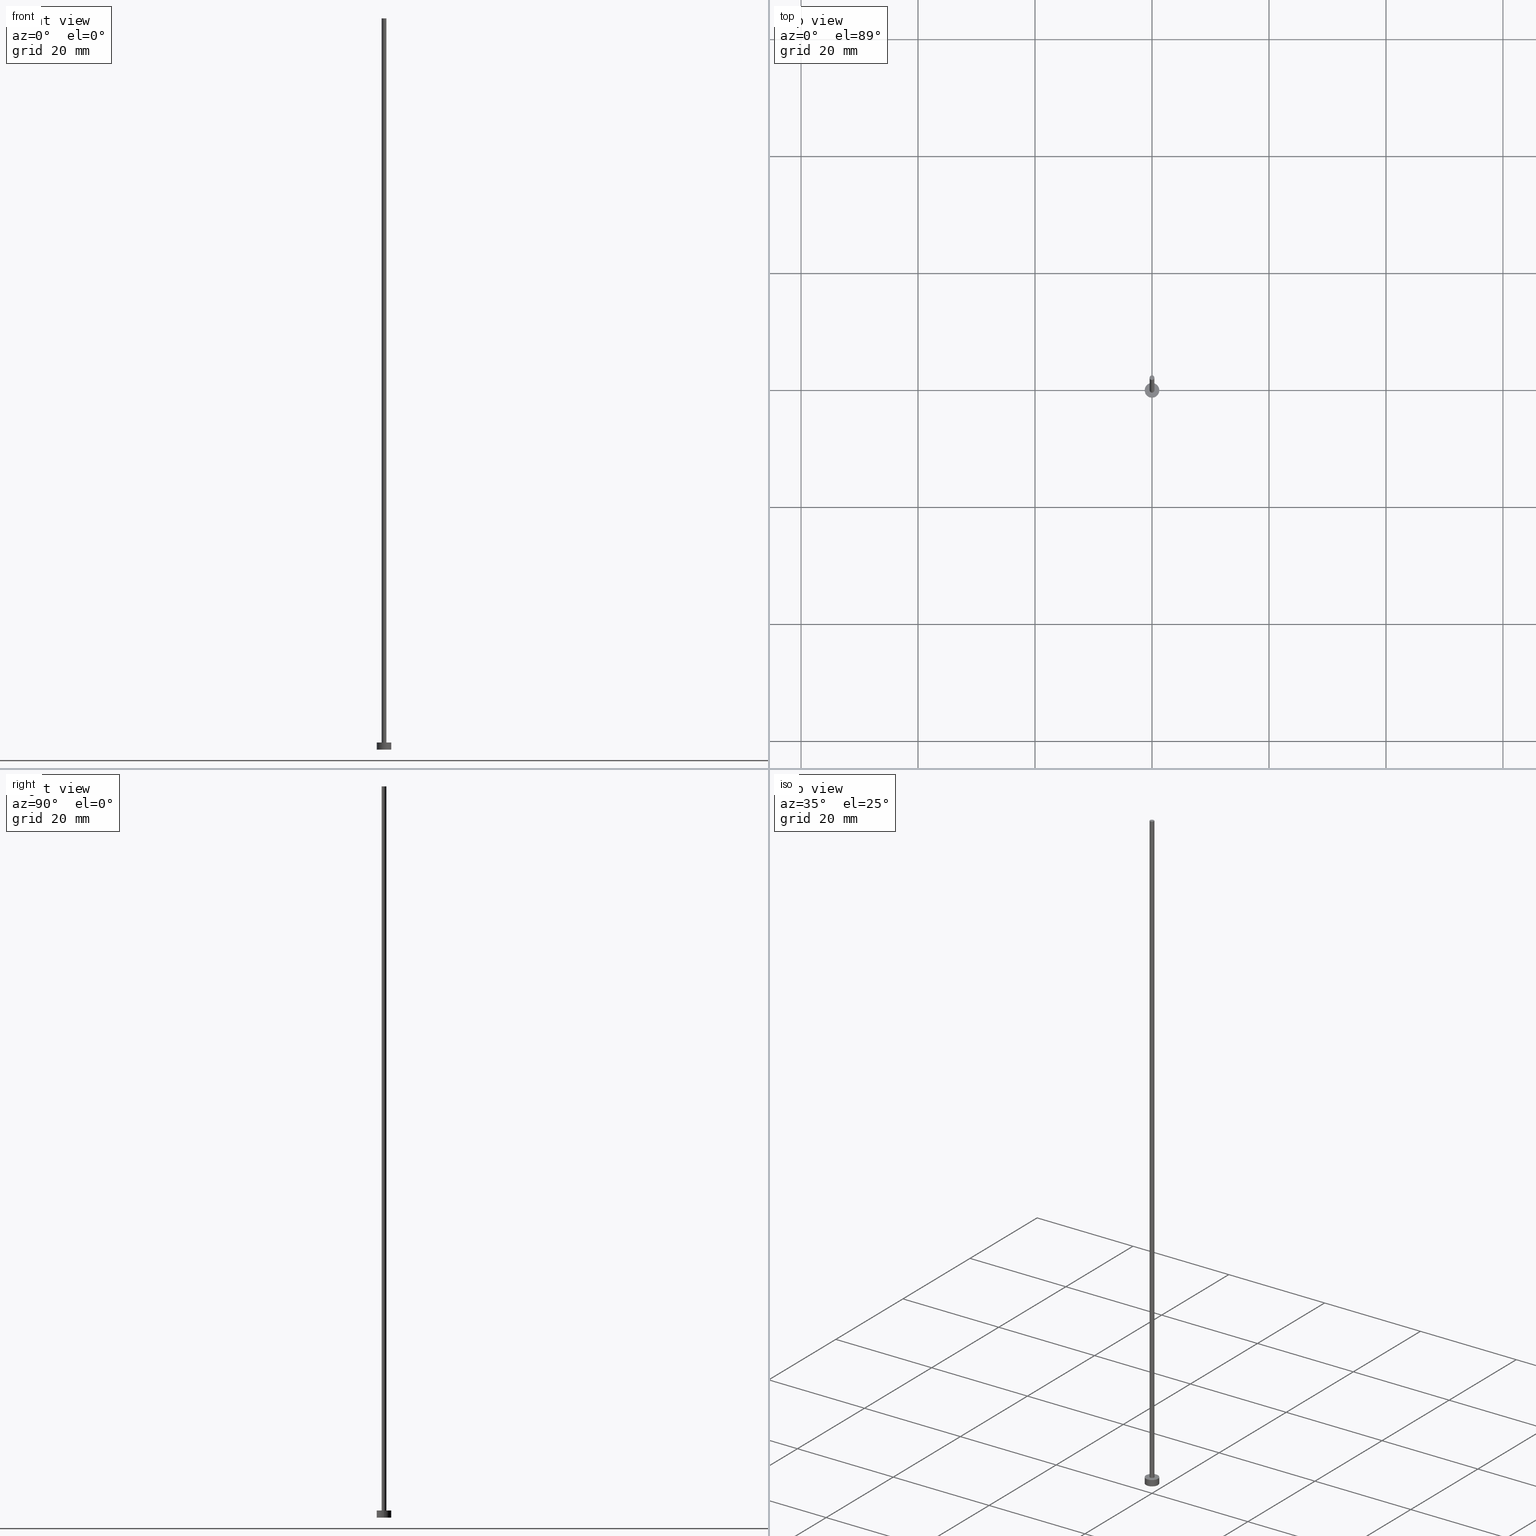
[diagram: canonical four-view strip — front | top / right | iso, engineering-drawing reading convention]
A machine part, canonical four-view strip (front | top / right | iso — engineering-drawing reading convention). The complete STEP part file that produces these views, byte-faithful:
ISO-10303-21;
HEADER;
FILE_DESCRIPTION (( 'STEP AP203' ),
    '1' );
FILE_NAME ('d36b.STEP',
    '2026-02-06T12:44:44',
    ( '' ),
    ( '' ),
    'SwSTEP 2.0',
    'SolidWorks 2019',
    '' );
FILE_SCHEMA (( 'CONFIG_CONTROL_DESIGN' ));
ENDSEC;

DATA;
#1 = ADVANCED_FACE ( 'NONE', ( #242 ), #224, .T. ) ;
#2 = CC_DESIGN_DATE_AND_TIME_ASSIGNMENT ( #30, #211, ( #17 ) ) ;
#3 = COORDINATED_UNIVERSAL_TIME_OFFSET ( 1, 0, .AHEAD. ) ;
#4 = AXIS2_PLACEMENT_3D ( 'NONE', #11, #145, #108 ) ;
#5 = DATE_AND_TIME ( #101, #133 ) ;
#6 = PERSON_AND_ORGANIZATION ( #22, #199 ) ;
#7 = EDGE_CURVE ( 'NONE', #43, #165, #127, .T. ) ;
#8 = CARTESIAN_POINT ( 'NONE',  ( 0.000000000000000000, 0.000000000000000000, 1.199999999999999956 ) ) ;
#9 = ORIENTED_EDGE ( 'NONE', *, *, #167, .T. ) ;
#10 = DATE_TIME_ROLE ( 'creation_date' ) ;
#11 = CARTESIAN_POINT ( 'NONE',  ( 0.000000000000000000, 0.000000000000000000, 1.199999999999999956 ) ) ;
#12 = VECTOR ( 'NONE', #38, 1000.000000000000000 ) ;
#13 = LINE ( 'NONE', #251, #117 ) ;
#14 = APPLICATION_CONTEXT ( 'configuration controlled 3d designs of mechanical parts and assemblies' ) ;
#15 = FACE_OUTER_BOUND ( 'NONE', #65, .T. ) ;
#16 = DIRECTION ( 'NONE',  ( -1.000000000000000000, 0.000000000000000000, 0.000000000000000000 ) ) ;
#17 = SECURITY_CLASSIFICATION ( '', '', #188 ) ;
#18 =( LENGTH_UNIT ( ) NAMED_UNIT ( * ) SI_UNIT ( .MILLI., .METRE. ) );
#19 = FACE_OUTER_BOUND ( 'NONE', #69, .T. ) ;
#20 = EDGE_CURVE ( 'NONE', #71, #102, #162, .T. ) ;
#21 = PRODUCT_DEFINITION ( 'NEZN�M�', '', #42, #175 ) ;
#22 = PERSON ( 'NEUR�EN�', 'NEUR�EN�', 'NEUR�EN�', ('NEUR�EN�'), ('NEUR�EN�'), ('NEUR�EN�') ) ;
#23 = ORIENTED_EDGE ( 'NONE', *, *, #155, .F. ) ;
#24 = CARTESIAN_POINT ( 'NONE',  ( 0.000000000000000000, 0.000000000000000000, 125.0000000000000000 ) ) ;
#25 = AXIS2_PLACEMENT_3D ( 'NONE', #158, #95, #97 ) ;
#26 = ORIENTED_EDGE ( 'NONE', *, *, #241, .F. ) ;
#27 = PLANE ( 'NONE',  #70 ) ;
#28 = APPROVAL_DATE_TIME ( #45, #81 ) ;
#29 = DIRECTION ( 'NONE',  ( 1.000000000000000000, 0.000000000000000000, -0.000000000000000000 ) ) ;
#30 = DATE_AND_TIME ( #153, #161 ) ;
#31 = DIRECTION ( 'NONE',  ( -0.000000000000000000, -0.000000000000000000, -1.000000000000000000 ) ) ;
#32 = DIRECTION ( 'NONE',  ( 1.000000000000000000, 0.000000000000000000, 0.000000000000000000 ) ) ;
#33 = ADVANCED_FACE ( 'NONE', ( #68, #132 ), #244, .T. ) ;
#34 = CARTESIAN_POINT ( 'NONE',  ( 0.000000000000000000, 0.000000000000000000, 1.199999999999999956 ) ) ;
#35 = CC_DESIGN_APPROVAL ( #209, ( #17 ) ) ;
#36 = CIRCLE ( 'NONE', #184, 1.250000000000000000 ) ;
#37 = DIRECTION ( 'NONE',  ( -0.000000000000000000, -0.000000000000000000, -1.000000000000000000 ) ) ;
#38 = DIRECTION ( 'NONE',  ( -0.000000000000000000, -0.000000000000000000, -1.000000000000000000 ) ) ;
#39 = APPROVAL_ROLE ( '' ) ;
#40 = APPLICATION_PROTOCOL_DEFINITION ( 'international standard', 'config_control_design', 1994, #218 ) ;
#41 = ORIENTED_EDGE ( 'NONE', *, *, #53, .F. ) ;
#42 = PRODUCT_DEFINITION_FORMATION_WITH_SPECIFIED_SOURCE ( 'LIBOVOLN�', '', #121, .NOT_KNOWN. ) ;
#43 = VERTEX_POINT ( 'NONE', #128 ) ;
#44 = ORIENTED_EDGE ( 'NONE', *, *, #7, .F. ) ;
#45 = DATE_AND_TIME ( #227, #221 ) ;
#46 = CARTESIAN_POINT ( 'NONE',  ( 0.000000000000000000, 0.000000000000000000, 125.0000000000000000 ) ) ;
#47 = VERTEX_POINT ( 'NONE', #149 ) ;
#48 = DIRECTION ( 'NONE',  ( 0.000000000000000000, 0.000000000000000000, 1.000000000000000000 ) ) ;
#49 = CC_DESIGN_DATE_AND_TIME_ASSIGNMENT ( #225, #10, ( #21 ) ) ;
#50 = DATE_AND_TIME ( #152, #197 ) ;
#51 = CARTESIAN_POINT ( 'NONE',  ( 0.4000000000000000222, 4.898587196589413075E-17, 125.0000000000000000 ) ) ;
#52 = AXIS2_PLACEMENT_3D ( 'NONE', #160, #220, #238 ) ;
#53 = EDGE_CURVE ( 'NONE', #187, #150, #36, .T. ) ;
#54 =( GEOMETRIC_REPRESENTATION_CONTEXT ( 3 ) GLOBAL_UNCERTAINTY_ASSIGNED_CONTEXT ( ( #78 ) ) GLOBAL_UNIT_ASSIGNED_CONTEXT ( ( #18, #116, #100 ) ) REPRESENTATION_CONTEXT ( 'NONE', 'WORKASPACE' ) );
#55 = DIRECTION ( 'NONE',  ( 0.000000000000000000, 0.000000000000000000, 1.000000000000000000 ) ) ;
#56 = DIRECTION ( 'NONE',  ( -1.000000000000000000, 0.000000000000000000, 0.000000000000000000 ) ) ;
#57 = APPROVAL_ROLE ( '' ) ;
#58 = CYLINDRICAL_SURFACE ( 'NONE', #85, 1.250000000000000000 ) ;
#59 = CIRCLE ( 'NONE', #245, 0.4000000000000000222 ) ;
#60 = CARTESIAN_POINT ( 'NONE',  ( 0.000000000000000000, 0.000000000000000000, 0.000000000000000000 ) ) ;
#61 = CC_DESIGN_PERSON_AND_ORGANIZATION_ASSIGNMENT ( #104, #192, ( #42 ) ) ;
#62 = ADVANCED_FACE ( 'NONE', ( #223 ), #27, .T. ) ;
#63 = AXIS2_PLACEMENT_3D ( 'NONE', #24, #89, #243 ) ;
#64 = PRODUCT_DEFINITION_SHAPE ( 'NONE', 'NONE',  #21 ) ;
#65 = EDGE_LOOP ( 'NONE', ( #193, #26 ) ) ;
#66 = CC_DESIGN_APPROVAL ( #81, ( #42 ) ) ;
#67 = ORIENTED_EDGE ( 'NONE', *, *, #141, .F. ) ;
#68 = FACE_BOUND ( 'NONE', #249, .T. ) ;
#69 = EDGE_LOOP ( 'NONE', ( #239, #191, #172, #23 ) ) ;
#70 = AXIS2_PLACEMENT_3D ( 'NONE', #73, #189, #29 ) ;
#71 = VERTEX_POINT ( 'NONE', #228 ) ;
#72 = PERSON_AND_ORGANIZATION ( #22, #199 ) ;
#73 = CARTESIAN_POINT ( 'NONE',  ( 0.000000000000000000, 0.000000000000000000, 125.0000000000000000 ) ) ;
#74 = APPROVAL_STATUS ( 'not_yet_approved' ) ;
#75 = CARTESIAN_POINT ( 'NONE',  ( 1.250000000000000000, 1.530808498934191571E-16, 1.199999999999999956 ) ) ;
#76 = DIRECTION ( 'NONE',  ( 1.000000000000000000, 0.000000000000000000, 0.000000000000000000 ) ) ;
#77 = CARTESIAN_POINT ( 'NONE',  ( 0.000000000000000000, 0.000000000000000000, 1.199999999999999956 ) ) ;
#78 = UNCERTAINTY_MEASURE_WITH_UNIT (LENGTH_MEASURE( 1.000000000000000082E-05 ), #18, 'distance_accuracy_value', 'NONE');
#79 = CARTESIAN_POINT ( 'NONE',  ( 0.000000000000000000, 0.000000000000000000, 1.199999999999999956 ) ) ;
#80 = APPROVAL_PERSON_ORGANIZATION ( #250, #209, #57 ) ;
#81 = APPROVAL ( #202, 'NEUR�EN�' ) ;
#82 = EDGE_CURVE ( 'NONE', #165, #43, #247, .T. ) ;
#83 = ORIENTED_EDGE ( 'NONE', *, *, #20, .T. ) ;
#84 = PERSON_AND_ORGANIZATION_ROLE ( 'classification_officer' ) ;
#85 = AXIS2_PLACEMENT_3D ( 'NONE', #77, #112, #16 ) ;
#86 = COORDINATED_UNIVERSAL_TIME_OFFSET ( 1, 0, .AHEAD. ) ;
#87 = DIRECTION ( 'NONE',  ( -1.000000000000000000, 0.000000000000000000, 0.000000000000000000 ) ) ;
#88 = ORIENTED_EDGE ( 'NONE', *, *, #186, .T. ) ;
#89 = DIRECTION ( 'NONE',  ( 0.000000000000000000, 0.000000000000000000, 1.000000000000000000 ) ) ;
#90 = PERSON_AND_ORGANIZATION ( #22, #199 ) ;
#91 = CC_DESIGN_APPROVAL ( #181, ( #21 ) ) ;
#92 = CYLINDRICAL_SURFACE ( 'NONE', #156, 1.250000000000000000 ) ;
#93 = CC_DESIGN_PERSON_AND_ORGANIZATION_ASSIGNMENT ( #72, #200, ( #42 ) ) ;
#94 = LINE ( 'NONE', #229, #177 ) ;
#95 = DIRECTION ( 'NONE',  ( 0.000000000000000000, 0.000000000000000000, 1.000000000000000000 ) ) ;
#96 = AXIS2_PLACEMENT_3D ( 'NONE', #46, #31, #87 ) ;
#97 = DIRECTION ( 'NONE',  ( 1.000000000000000000, 0.000000000000000000, 0.000000000000000000 ) ) ;
#98 = CIRCLE ( 'NONE', #25, 1.250000000000000000 ) ;
#99 = CC_DESIGN_PERSON_AND_ORGANIZATION_ASSIGNMENT ( #6, #84, ( #17 ) ) ;
#100 =( NAMED_UNIT ( * ) SI_UNIT ( $, .STERADIAN. ) SOLID_ANGLE_UNIT ( ) );
#101 = CALENDAR_DATE ( 2026, 6, 2 ) ;
#102 = VERTEX_POINT ( 'NONE', #114 ) ;
#103 = VERTEX_POINT ( 'NONE', #255 ) ;
#104 = PERSON_AND_ORGANIZATION ( #22, #199 ) ;
#105 = CARTESIAN_POINT ( 'NONE',  ( 0.000000000000000000, 0.000000000000000000, 0.000000000000000000 ) ) ;
#106 = ADVANCED_FACE ( 'NONE', ( #173 ), #92, .T. ) ;
#107 = EDGE_LOOP ( 'NONE', ( #120, #88, #166, #169 ) ) ;
#108 = DIRECTION ( 'NONE',  ( 1.000000000000000000, 0.000000000000000000, -0.000000000000000000 ) ) ;
#109 = SHAPE_DEFINITION_REPRESENTATION ( #64, #232 ) ;
#110 = ADVANCED_FACE ( 'NONE', ( #15 ), #235, .F. ) ;
#111 = FACE_OUTER_BOUND ( 'NONE', #107, .T. ) ;
#112 = DIRECTION ( 'NONE',  ( -0.000000000000000000, -0.000000000000000000, -1.000000000000000000 ) ) ;
#113 = AXIS2_PLACEMENT_3D ( 'NONE', #105, #130, #170 ) ;
#114 = CARTESIAN_POINT ( 'NONE',  ( 1.250000000000000000, 1.530808498934191571E-16, 0.000000000000000000 ) ) ;
#115 = DIRECTION ( 'NONE',  ( -0.000000000000000000, -0.000000000000000000, -1.000000000000000000 ) ) ;
#116 =( NAMED_UNIT ( * ) PLANE_ANGLE_UNIT ( ) SI_UNIT ( $, .RADIAN. ) );
#117 = VECTOR ( 'NONE', #135, 1000.000000000000000 ) ;
#118 = CLOSED_SHELL ( 'NONE', ( #124, #215, #106, #33, #110, #1, #62 ) ) ;
#119 = APPROVAL_DATE_TIME ( #5, #181 ) ;
#120 = ORIENTED_EDGE ( 'NONE', *, *, #167, .F. ) ;
#121 = PRODUCT ( 'd36b', 'd36b', '', ( #236 ) ) ;
#122 = ORIENTED_EDGE ( 'NONE', *, *, #82, .T. ) ;
#123 = ORIENTED_EDGE ( 'NONE', *, *, #53, .T. ) ;
#124 = ADVANCED_FACE ( 'NONE', ( #19 ), #212, .T. ) ;
#125 = ORIENTED_EDGE ( 'NONE', *, *, #207, .F. ) ;
#126 = AXIS2_PLACEMENT_3D ( 'NONE', #79, #136, #140 ) ;
#127 = CIRCLE ( 'NONE', #63, 0.4000000000000000222 ) ;
#128 = CARTESIAN_POINT ( 'NONE',  ( -0.4000000000000000222, 0.000000000000000000, 125.0000000000000000 ) ) ;
#129 = CIRCLE ( 'NONE', #126, 0.4000000000000000222 ) ;
#130 = DIRECTION ( 'NONE',  ( 0.000000000000000000, 0.000000000000000000, 1.000000000000000000 ) ) ;
#131 = PRODUCT_RELATED_PRODUCT_CATEGORY ( 'detail', '', ( #121 ) ) ;
#132 = FACE_OUTER_BOUND ( 'NONE', #203, .T. ) ;
#133 = LOCAL_TIME ( 13, 44, 44.00000000000000000, #198 ) ;
#134 = APPROVAL_DATE_TIME ( #50, #209 ) ;
#135 = DIRECTION ( 'NONE',  ( -0.000000000000000000, -0.000000000000000000, -1.000000000000000000 ) ) ;
#136 = DIRECTION ( 'NONE',  ( 0.000000000000000000, 0.000000000000000000, 1.000000000000000000 ) ) ;
#137 = CARTESIAN_POINT ( 'NONE',  ( -0.4000000000000000222, 0.000000000000000000, 125.0000000000000000 ) ) ;
#138 = EDGE_CURVE ( 'NONE', #165, #103, #94, .T. ) ;
#139 = AXIS2_PLACEMENT_3D ( 'NONE', #151, #48, #208 ) ;
#140 = DIRECTION ( 'NONE',  ( 1.000000000000000000, 0.000000000000000000, 0.000000000000000000 ) ) ;
#141 = EDGE_CURVE ( 'NONE', #47, #103, #129, .T. ) ;
#142 = PERSON_AND_ORGANIZATION ( #22, #199 ) ;
#143 = EDGE_LOOP ( 'NONE', ( #171, #122 ) ) ;
#144 = ORIENTED_EDGE ( 'NONE', *, *, #138, .F. ) ;
#145 = DIRECTION ( 'NONE',  ( 0.000000000000000000, 0.000000000000000000, 1.000000000000000000 ) ) ;
#146 = EDGE_LOOP ( 'NONE', ( #246, #41, #226, #83 ) ) ;
#147 = COORDINATED_UNIVERSAL_TIME_OFFSET ( 1, 0, .AHEAD. ) ;
#148 = ORIENTED_EDGE ( 'NONE', *, *, #155, .T. ) ;
#149 = CARTESIAN_POINT ( 'NONE',  ( -0.4000000000000000222, 0.000000000000000000, 1.199999999999999956 ) ) ;
#150 = VERTEX_POINT ( 'NONE', #213 ) ;
#151 = CARTESIAN_POINT ( 'NONE',  ( 0.000000000000000000, 0.000000000000000000, 125.0000000000000000 ) ) ;
#152 = CALENDAR_DATE ( 2026, 6, 2 ) ;
#153 = CALENDAR_DATE ( 2026, 6, 2 ) ;
#154 = DIRECTION ( 'NONE',  ( -0.000000000000000000, -0.000000000000000000, -1.000000000000000000 ) ) ;
#155 = EDGE_CURVE ( 'NONE', #43, #47, #254, .T. ) ;
#156 = AXIS2_PLACEMENT_3D ( 'NONE', #233, #37, #159 ) ;
#157 = CARTESIAN_POINT ( 'NONE',  ( 0.000000000000000000, 0.000000000000000000, 0.000000000000000000 ) ) ;
#158 = CARTESIAN_POINT ( 'NONE',  ( 0.000000000000000000, 0.000000000000000000, 1.199999999999999956 ) ) ;
#159 = DIRECTION ( 'NONE',  ( -1.000000000000000000, 0.000000000000000000, 0.000000000000000000 ) ) ;
#160 = CARTESIAN_POINT ( 'NONE',  ( 0.000000000000000000, 0.000000000000000000, 0.000000000000000000 ) ) ;
#161 = LOCAL_TIME ( 13, 44, 44.00000000000000000, #86 ) ;
#162 = CIRCLE ( 'NONE', #113, 1.250000000000000000 ) ;
#163 = AXIS2_PLACEMENT_3D ( 'NONE', #60, #55, #253 ) ;
#164 = CC_DESIGN_PERSON_AND_ORGANIZATION_ASSIGNMENT ( #142, #217, ( #121 ) ) ;
#165 = VERTEX_POINT ( 'NONE', #51 ) ;
#166 = ORIENTED_EDGE ( 'NONE', *, *, #241, .T. ) ;
#167 = EDGE_CURVE ( 'NONE', #150, #187, #98, .T. ) ;
#168 = APPROVAL_PERSON_ORGANIZATION ( #90, #81, #248 ) ;
#169 = ORIENTED_EDGE ( 'NONE', *, *, #174, .F. ) ;
#170 = DIRECTION ( 'NONE',  ( 1.000000000000000000, 0.000000000000000000, 0.000000000000000000 ) ) ;
#171 = ORIENTED_EDGE ( 'NONE', *, *, #7, .T. ) ;
#172 = ORIENTED_EDGE ( 'NONE', *, *, #207, .T. ) ;
#173 = FACE_OUTER_BOUND ( 'NONE', #146, .T. ) ;
#174 = EDGE_CURVE ( 'NONE', #187, #71, #13, .T. ) ;
#175 = DESIGN_CONTEXT ( 'detailed design', #14, 'design' ) ;
#176 = DIRECTION ( 'NONE',  ( 0.000000000000000000, 0.000000000000000000, 1.000000000000000000 ) ) ;
#177 = VECTOR ( 'NONE', #179, 1000.000000000000000 ) ;
#178 = LINE ( 'NONE', #75, #196 ) ;
#179 = DIRECTION ( 'NONE',  ( -0.000000000000000000, -0.000000000000000000, -1.000000000000000000 ) ) ;
#180 = LOCAL_TIME ( 13, 44, 44.00000000000000000, #3 ) ;
#181 = APPROVAL ( #214, 'NEUR�EN�' ) ;
#182 = PERSON_AND_ORGANIZATION_ROLE ( 'creator' ) ;
#183 = APPLICATION_PROTOCOL_DEFINITION ( 'international standard', 'config_control_design', 1994, #14 ) ;
#184 = AXIS2_PLACEMENT_3D ( 'NONE', #8, #206, #205 ) ;
#185 = PERSON_AND_ORGANIZATION ( #22, #199 ) ;
#186 = EDGE_CURVE ( 'NONE', #150, #102, #178, .T. ) ;
#187 = VERTEX_POINT ( 'NONE', #210 ) ;
#188 = SECURITY_CLASSIFICATION_LEVEL ( 'unclassified' ) ;
#189 = DIRECTION ( 'NONE',  ( 0.000000000000000000, 0.000000000000000000, 1.000000000000000000 ) ) ;
#190 = AXIS2_PLACEMENT_3D ( 'NONE', #157, #176, #76 ) ;
#191 = ORIENTED_EDGE ( 'NONE', *, *, #138, .T. ) ;
#192 = PERSON_AND_ORGANIZATION_ROLE ( 'creator' ) ;
#193 = ORIENTED_EDGE ( 'NONE', *, *, #20, .F. ) ;
#194 = CC_DESIGN_PERSON_AND_ORGANIZATION_ASSIGNMENT ( #185, #182, ( #21 ) ) ;
#195 = CC_DESIGN_SECURITY_CLASSIFICATION ( #17, ( #42 ) ) ;
#196 = VECTOR ( 'NONE', #154, 1000.000000000000000 ) ;
#197 = LOCAL_TIME ( 13, 44, 44.00000000000000000, #252 ) ;
#198 = COORDINATED_UNIVERSAL_TIME_OFFSET ( 1, 0, .AHEAD. ) ;
#199 = ORGANIZATION ( 'NEUR�EN�', 'NEUR�EN�', '' ) ;
#200 = PERSON_AND_ORGANIZATION_ROLE ( 'design_supplier' ) ;
#201 = ORIENTED_EDGE ( 'NONE', *, *, #141, .T. ) ;
#202 = APPROVAL_STATUS ( 'not_yet_approved' ) ;
#203 = EDGE_LOOP ( 'NONE', ( #123, #9 ) ) ;
#204 = EDGE_LOOP ( 'NONE', ( #144, #44, #148, #201 ) ) ;
#205 = DIRECTION ( 'NONE',  ( 1.000000000000000000, 0.000000000000000000, 0.000000000000000000 ) ) ;
#206 = DIRECTION ( 'NONE',  ( 0.000000000000000000, 0.000000000000000000, 1.000000000000000000 ) ) ;
#207 = EDGE_CURVE ( 'NONE', #103, #47, #59, .T. ) ;
#208 = DIRECTION ( 'NONE',  ( 1.000000000000000000, 0.000000000000000000, 0.000000000000000000 ) ) ;
#209 = APPROVAL ( #74, 'NEUR�EN�' ) ;
#210 = CARTESIAN_POINT ( 'NONE',  ( -1.250000000000000000, 0.000000000000000000, 1.199999999999999956 ) ) ;
#211 = DATE_TIME_ROLE ( 'classification_date' ) ;
#212 = CYLINDRICAL_SURFACE ( 'NONE', #216, 0.4000000000000000222 ) ;
#213 = CARTESIAN_POINT ( 'NONE',  ( 1.250000000000000000, 1.530808498934191571E-16, 1.199999999999999956 ) ) ;
#214 = APPROVAL_STATUS ( 'not_yet_approved' ) ;
#215 = ADVANCED_FACE ( 'NONE', ( #111 ), #58, .T. ) ;
#216 = AXIS2_PLACEMENT_3D ( 'NONE', #231, #115, #56 ) ;
#217 = PERSON_AND_ORGANIZATION_ROLE ( 'design_owner' ) ;
#218 = APPLICATION_CONTEXT ( 'configuration controlled 3d designs of mechanical parts and assemblies' ) ;
#219 = MANIFOLD_SOLID_BREP ( 'P�idat vysunut�m3', #118 ) ;
#220 = DIRECTION ( 'NONE',  ( 0.000000000000000000, 0.000000000000000000, 1.000000000000000000 ) ) ;
#221 = LOCAL_TIME ( 13, 44, 44.00000000000000000, #147 ) ;
#222 = CALENDAR_DATE ( 2026, 6, 2 ) ;
#223 = FACE_OUTER_BOUND ( 'NONE', #143, .T. ) ;
#224 = CYLINDRICAL_SURFACE ( 'NONE', #96, 0.4000000000000000222 ) ;
#225 = DATE_AND_TIME ( #222, #180 ) ;
#226 = ORIENTED_EDGE ( 'NONE', *, *, #174, .T. ) ;
#227 = CALENDAR_DATE ( 2026, 6, 2 ) ;
#228 = CARTESIAN_POINT ( 'NONE',  ( -1.250000000000000000, 0.000000000000000000, 0.000000000000000000 ) ) ;
#229 = CARTESIAN_POINT ( 'NONE',  ( 0.4000000000000000222, 4.898587196589413075E-17, 125.0000000000000000 ) ) ;
#230 = APPROVAL_PERSON_ORGANIZATION ( #237, #181, #39 ) ;
#231 = CARTESIAN_POINT ( 'NONE',  ( 0.000000000000000000, 0.000000000000000000, 125.0000000000000000 ) ) ;
#232 = ADVANCED_BREP_SHAPE_REPRESENTATION ( 'd36b', ( #219, #52 ), #54 ) ;
#233 = CARTESIAN_POINT ( 'NONE',  ( 0.000000000000000000, 0.000000000000000000, 1.199999999999999956 ) ) ;
#234 = DIRECTION ( 'NONE',  ( 0.000000000000000000, 0.000000000000000000, 1.000000000000000000 ) ) ;
#235 = PLANE ( 'NONE',  #163 ) ;
#236 = MECHANICAL_CONTEXT ( 'NONE', #218, 'mechanical' ) ;
#237 = PERSON_AND_ORGANIZATION ( #22, #199 ) ;
#238 = DIRECTION ( 'NONE',  ( 1.000000000000000000, 0.000000000000000000, 0.000000000000000000 ) ) ;
#239 = ORIENTED_EDGE ( 'NONE', *, *, #82, .F. ) ;
#240 = CIRCLE ( 'NONE', #190, 1.250000000000000000 ) ;
#241 = EDGE_CURVE ( 'NONE', #102, #71, #240, .T. ) ;
#242 = FACE_OUTER_BOUND ( 'NONE', #204, .T. ) ;
#243 = DIRECTION ( 'NONE',  ( 1.000000000000000000, 0.000000000000000000, 0.000000000000000000 ) ) ;
#244 = PLANE ( 'NONE',  #4 ) ;
#245 = AXIS2_PLACEMENT_3D ( 'NONE', #34, #234, #32 ) ;
#246 = ORIENTED_EDGE ( 'NONE', *, *, #186, .F. ) ;
#247 = CIRCLE ( 'NONE', #139, 0.4000000000000000222 ) ;
#248 = APPROVAL_ROLE ( '' ) ;
#249 = EDGE_LOOP ( 'NONE', ( #67, #125 ) ) ;
#250 = PERSON_AND_ORGANIZATION ( #22, #199 ) ;
#251 = CARTESIAN_POINT ( 'NONE',  ( -1.250000000000000000, 0.000000000000000000, 1.199999999999999956 ) ) ;
#252 = COORDINATED_UNIVERSAL_TIME_OFFSET ( 1, 0, .AHEAD. ) ;
#253 = DIRECTION ( 'NONE',  ( 1.000000000000000000, 0.000000000000000000, -0.000000000000000000 ) ) ;
#254 = LINE ( 'NONE', #137, #12 ) ;
#255 = CARTESIAN_POINT ( 'NONE',  ( 0.4000000000000000222, 4.898587196589413075E-17, 1.199999999999999956 ) ) ;
ENDSEC;
END-ISO-10303-21;
